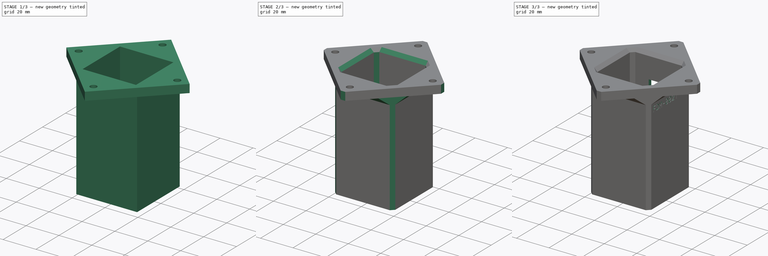
[diagram: build sequence overview — one tinted view per stage of 3, left to right]
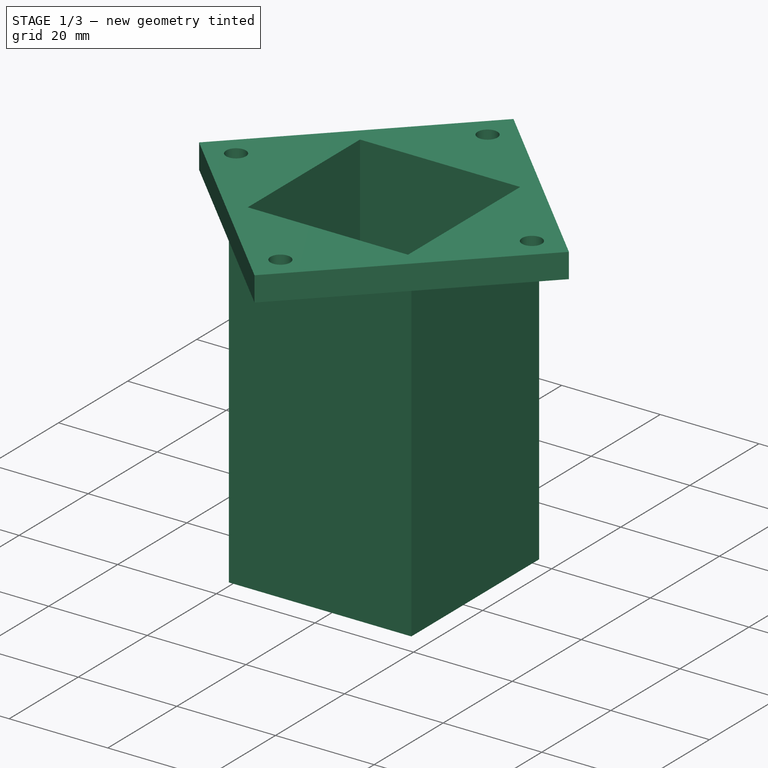
[diagram: stage 1 of 3 — iso view after this stage's code; geometry added in this stage tinted green]
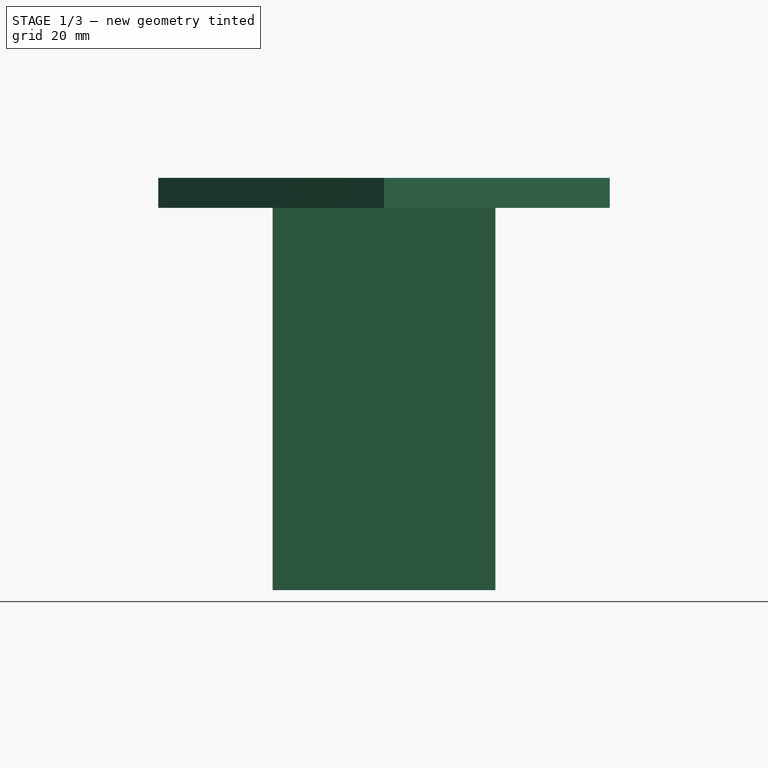
[diagram: stage 1 of 3 — front view after this stage's code; geometry added in this stage tinted green]
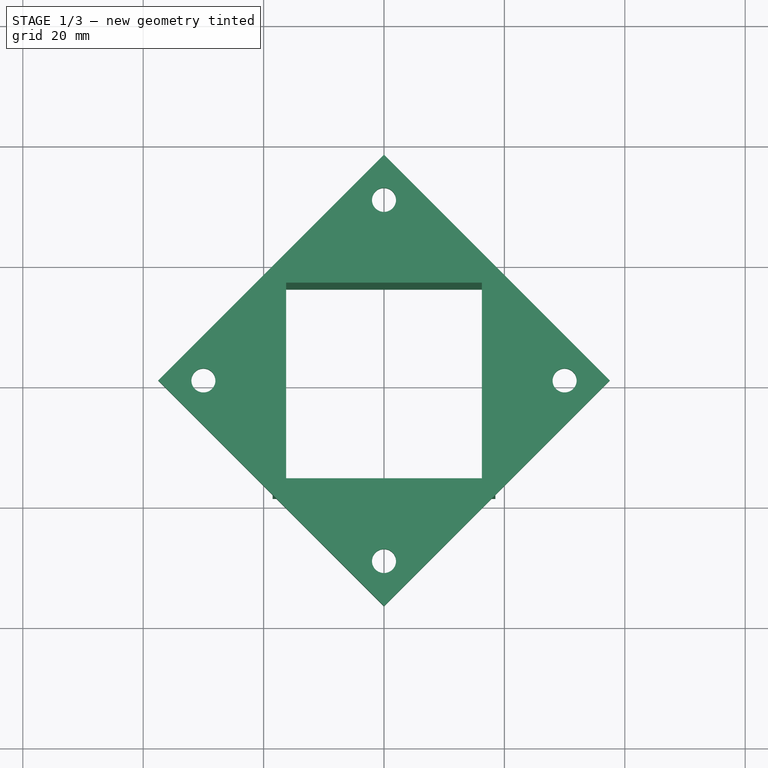
[diagram: stage 1 of 3 — top view after this stage's code; geometry added in this stage tinted green]
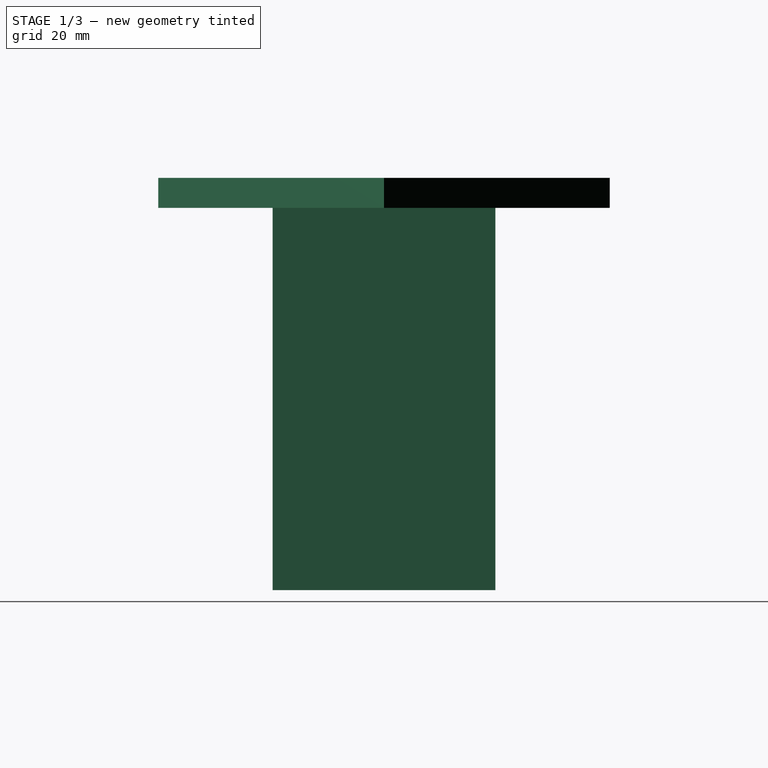
[diagram: stage 1 of 3 — right view after this stage's code; geometry added in this stage tinted green]
FCSTD DOCUMENT  (FreeCAD 0.19R24291 (Git))
Label: FDM-0021_foot
License: All rights reserved
LicenseURL: http://en.wikipedia.org/wiki/All_rights_reserved
objects: Sketcher::SketchObject×5, PartDesign::Pocket×4, PartDesign::Plane×3, PartDesign::Pad×2, PartDesign::Chamfer×2, Part::Part2DObjectPython×1, PartDesign::Body×1
note: 26 computed .brp shape members not serialized (recipe doc carries the construction recipe); baked Part::Feature solids carry a one-line shape summary decoded from their .brp

FEATURE [Sketcher::SketchObject] Sketch
  FullyConstrained = true
  MapMode = 5
  Support = -> [XY_Plane]
  sketch-geometry (8):
    g0: LineSegment StartX=0 StartY=37.5 StartZ=0 EndX=-37.5 EndY=0 EndZ=0
    g1: LineSegment StartX=-37.5 StartY=0 StartZ=0 EndX=0 EndY=-37.5 EndZ=0
    g2: LineSegment StartX=0 StartY=-37.5 StartZ=0 EndX=37.5 EndY=-7.1e-15 EndZ=0
    g3: LineSegment StartX=37.5 StartY=-7.1e-15 StartZ=0 EndX=0 EndY=37.5 EndZ=0
    g4: Circle CenterX=30 CenterY=0 CenterZ=0 NormalX=0 NormalY=0 NormalZ=1 AngleXU=0 Radius=2
    g5: Circle CenterX=0 CenterY=30 CenterZ=0 NormalX=0 NormalY=0 NormalZ=1 AngleXU=0 Radius=2
    g6: Circle CenterX=-30 CenterY=0 CenterZ=0 NormalX=0 NormalY=0 NormalZ=1 AngleXU=0 Radius=2
    g7: Circle CenterX=0 CenterY=-30 CenterZ=0 NormalX=0 NormalY=0 NormalZ=1 AngleXU=0 Radius=2
  constraints (24):
    c: PointOnObject(g0,g-2)
    c: PointOnObject(g0,g-1)
    c: Coincident(g0,g1)
    c: PointOnObject(g1,g-2)
    c: Coincident(g1,g2)
    c: Coincident(g2,g3)
    c: Coincident(g3,g0)
    c: Equal(g0,g3)
    c: Equal(g0,g1)
    c: Equal(g0,g2)
    c: Angle(g-1,g0) = 0.785398
    c: DistanceY(g1,g0) = 75
    c: Diameter(g4) = 4
    c: PointOnObject(g5,g-2)
    c: PointOnObject(g6,g-1)
    c: PointOnObject(g7,g-2)
    c: Diameter(g5) = 4
    c: Diameter(g6) = 4
    c: Diameter(g7) = 4
    c: DistanceY(g-1,g5) = 30
    c: DistanceY(g7,g-1) = 30
    c: DistanceX(g6,g-1) = 30
    c: DistanceX(g-1,g4) = 30
    c: PointOnObject(g4,g-1)
FEATURE [PartDesign::Pad] Pad
  AllowMultiFace = false
  Direction = (1,1,1)
  Length = 5
  Length2 = 100
  Profile = -> Sketch
  Type = 0
FEATURE [Sketcher::SketchObject] Sketch001
  FullyConstrained = true
  MapMode = 5
  Support = -> [XY_Plane]
  sketch-geometry (4):
    g0: LineSegment StartX=-18.5 StartY=18.5 StartZ=0 EndX=18.5 EndY=18.5 EndZ=0
    g1: LineSegment StartX=18.5 StartY=18.5 StartZ=0 EndX=18.5 EndY=-18.5 EndZ=0
    g2: LineSegment StartX=18.5 StartY=-18.5 StartZ=0 EndX=-18.5 EndY=-18.5 EndZ=0
    g3: LineSegment StartX=-18.5 StartY=-18.5 StartZ=0 EndX=-18.5 EndY=18.5 EndZ=0
  constraints (10):
    c: Coincident(g0,g1)
    c: Coincident(g1,g2)
    c: Coincident(g2,g3)
    c: Coincident(g3,g0)
    c: Horizontal(g2)
    c: Vertical(g1)
    c: DistanceX(g2,g2) = 37
    c: DistanceY(g3,g3) = 37
    c: Symmetric(g0,g0,g-2)
    c: Symmetric(g0,g2,g-1)
FEATURE [PartDesign::Pad] Pad001
  AllowMultiFace = false
  BaseFeature = -> Pad
  Direction = (1,1,1)
  Length = 63.5
  Length2 = 100
  Profile = -> Sketch001
  Reversed = true
  Type = 0
FEATURE [Sketcher::SketchObject] Sketch002
  FullyConstrained = true
  MapMode = 5
  Support = -> [XY_Plane]
  sketch-geometry (4):
    g0: LineSegment StartX=-16.25 StartY=16.25 StartZ=0 EndX=16.25 EndY=16.25 EndZ=0
    g1: LineSegment StartX=16.25 StartY=16.25 StartZ=0 EndX=16.25 EndY=-16.25 EndZ=0
    g2: LineSegment StartX=16.25 StartY=-16.25 StartZ=0 EndX=-16.25 EndY=-16.25 EndZ=0
    g3: LineSegment StartX=-16.25 StartY=-16.25 StartZ=0 EndX=-16.25 EndY=16.25 EndZ=0
  constraints (10):
    c: Coincident(g0,g1)
    c: Coincident(g1,g2)
    c: Coincident(g2,g3)
    c: Coincident(g3,g0)
    c: Horizontal(g2)
    c: Vertical(g1)
    c: Symmetric(g0,g0,g-2)
    c: Symmetric(g0,g2,g-1)
    c: Equal(g3,g0)
    c: DistanceX(g0,g0) = 32.5
FEATURE [PartDesign::Pocket] Pocket
  AllowMultiFace = false
  BaseFeature = -> Pad001
  Length = 100
  Length2 = 100
  Profile = -> Sketch002
  Type = 4
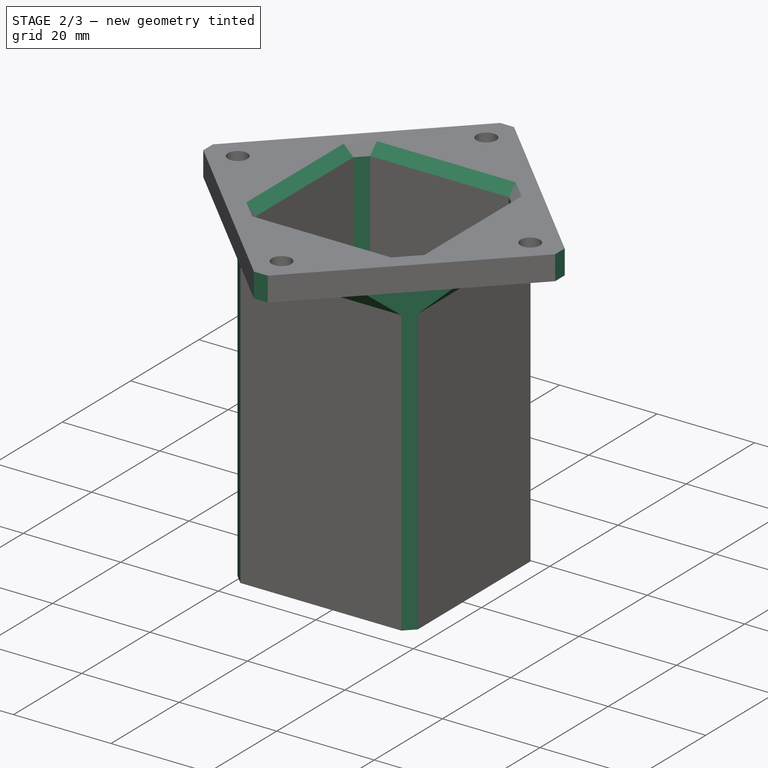
[diagram: stage 2 of 3 — iso view after this stage's code; geometry added in this stage tinted green]
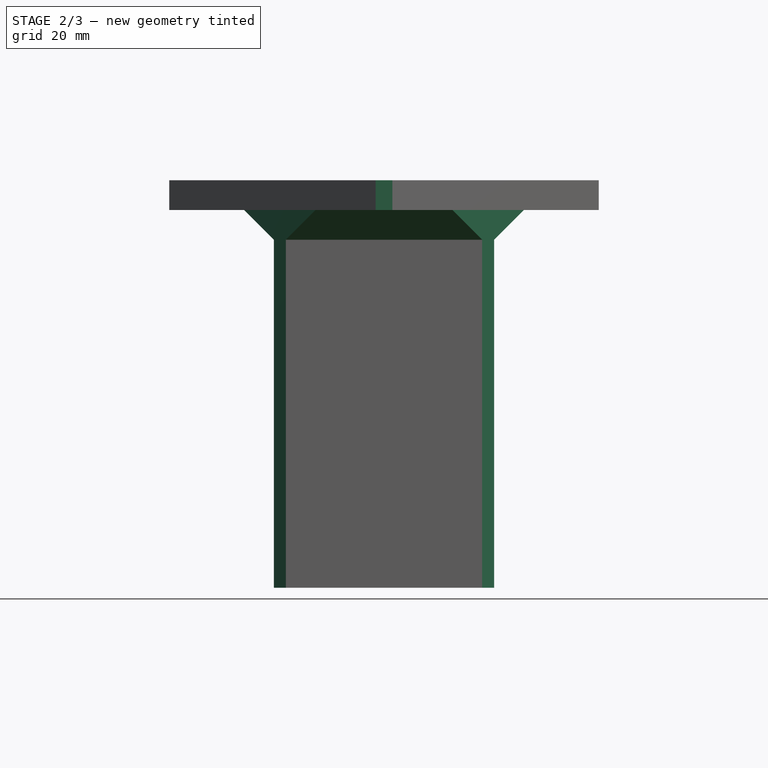
[diagram: stage 2 of 3 — front view after this stage's code; geometry added in this stage tinted green]
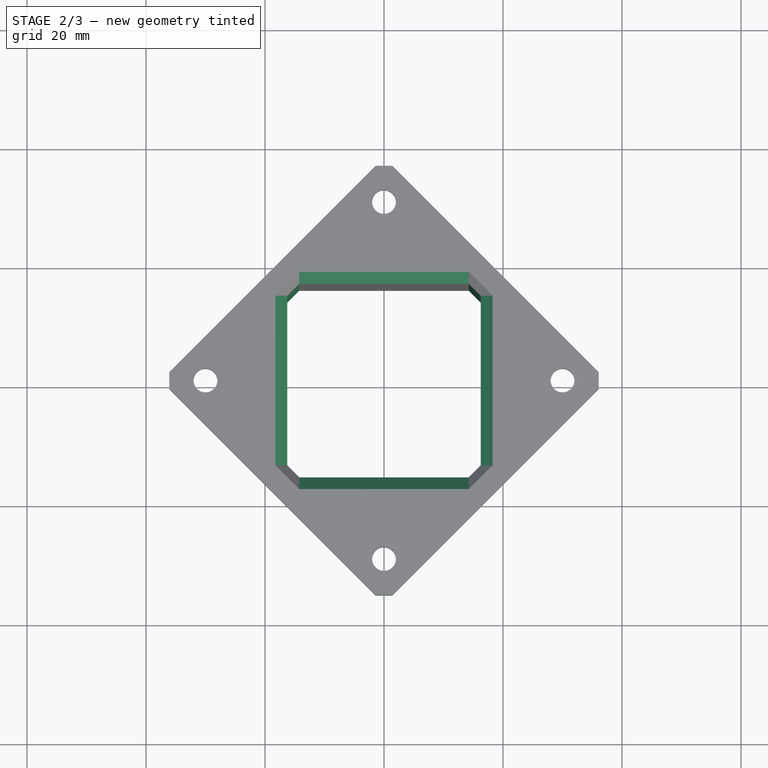
[diagram: stage 2 of 3 — top view after this stage's code; geometry added in this stage tinted green]
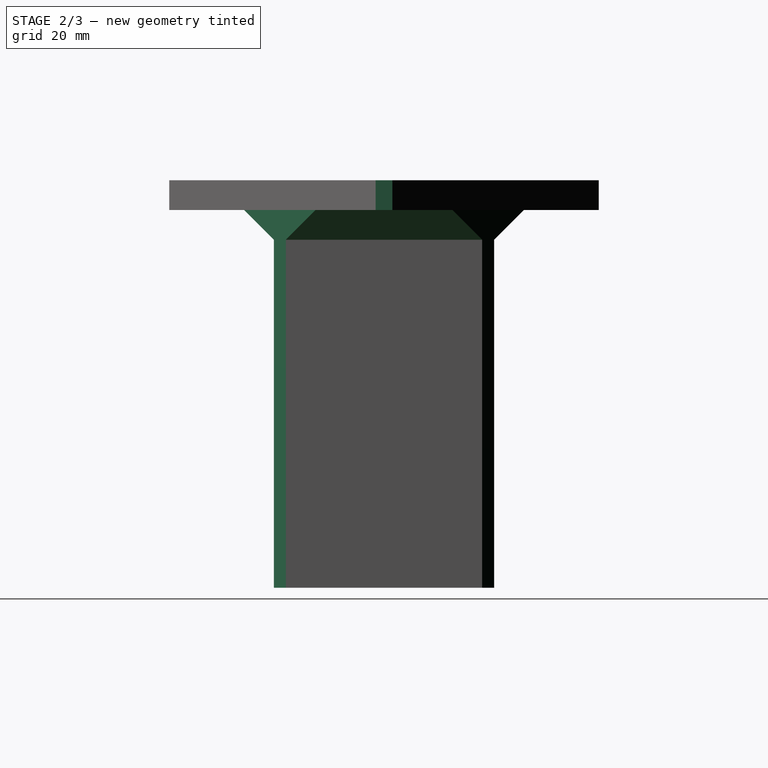
[diagram: stage 2 of 3 — right view after this stage's code; geometry added in this stage tinted green]
FEATURE [PartDesign::Chamfer] Chamfer
  Angle = 45
  Base = -> Pocket [Edge26,Edge23,Edge24,Edge25,Edge1,Edge5,Edge8,Edge2,Edge31,Edge34,Edge32,Edge36,Edge41,Edge47,Edge45,Edge43]
  BaseFeature = -> Pocket
  ChamferType = 0
  FlipDirection = false
  Size = 2
  Size2 = 1
  SupportTransform = false
FEATURE [PartDesign::Chamfer] Chamfer001
  Angle = 45
  Base = -> Chamfer [Edge20,Edge23,Edge19,Edge16]
  BaseFeature = -> Chamfer
  ChamferType = 0
  FlipDirection = false
  Size = 5
  Size2 = 1
  SupportTransform = false
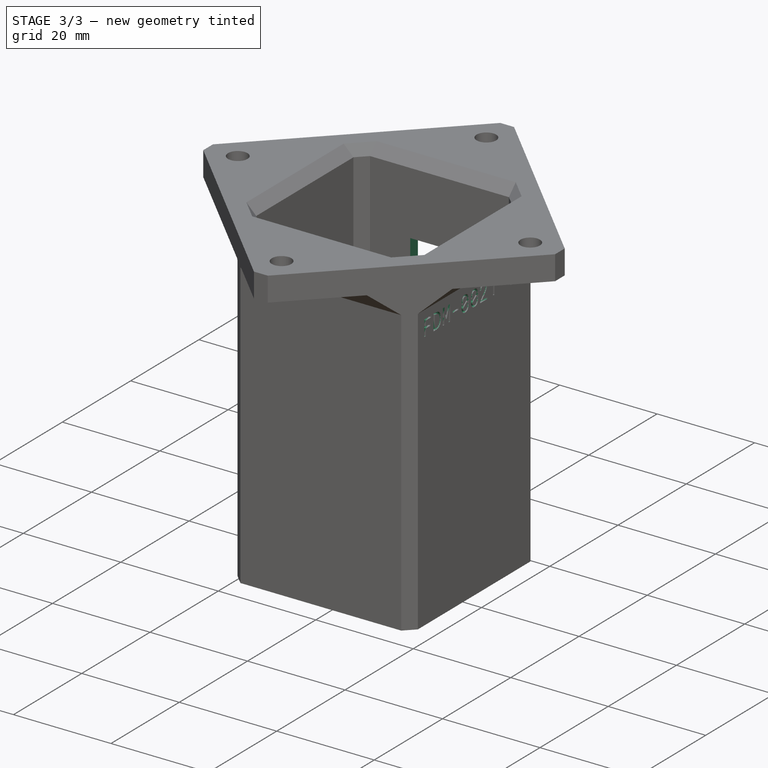
[diagram: stage 3 of 3 — iso view after this stage's code; geometry added in this stage tinted green]
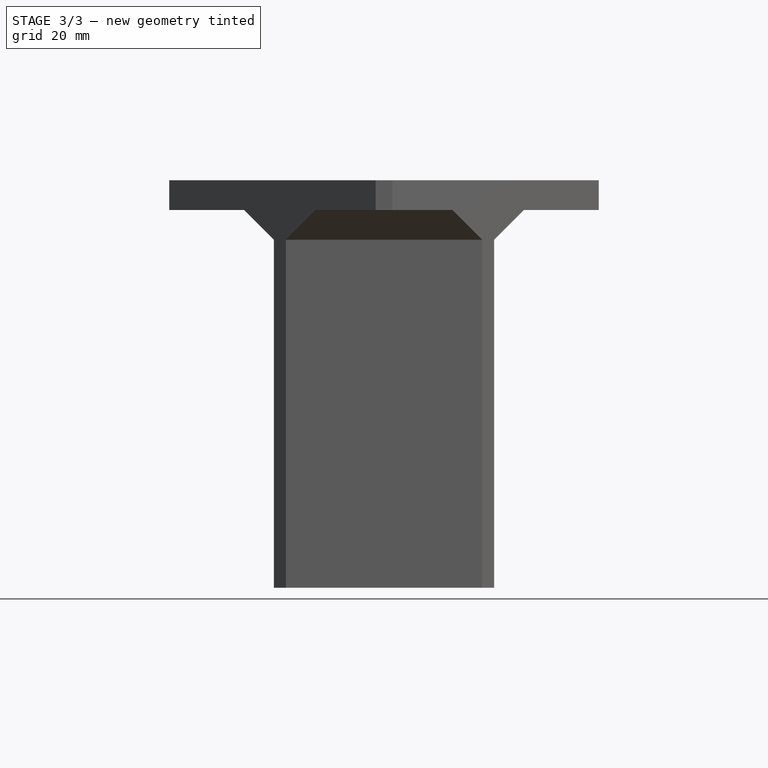
[diagram: stage 3 of 3 — front view after this stage's code; geometry added in this stage tinted green]
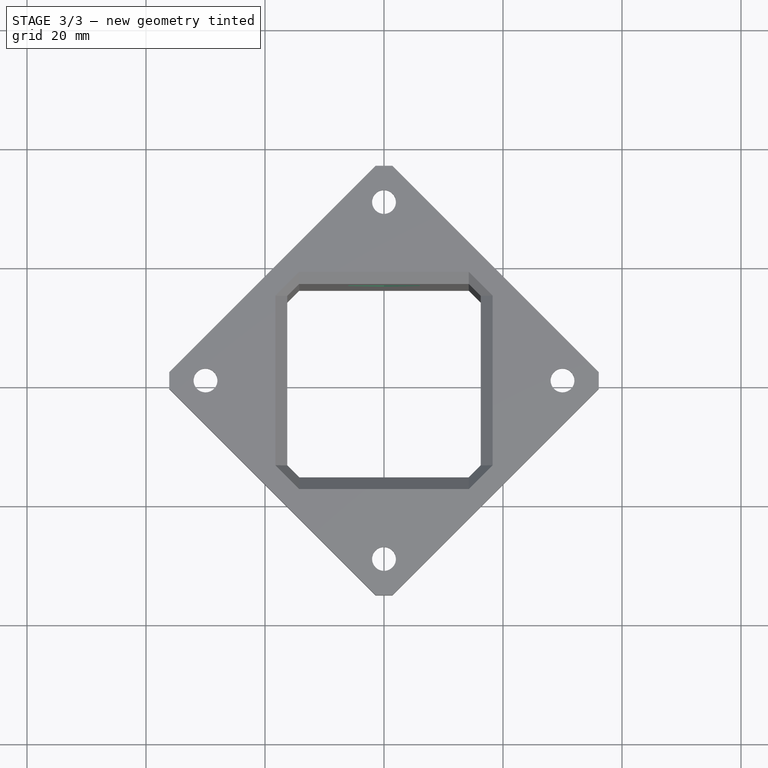
[diagram: stage 3 of 3 — top view after this stage's code; geometry added in this stage tinted green]
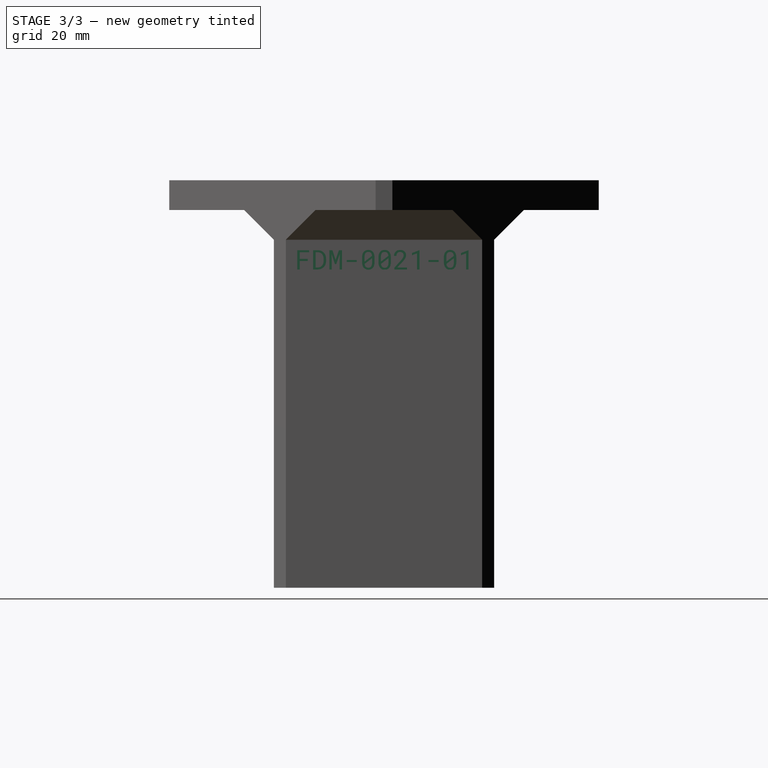
[diagram: stage 3 of 3 — right view after this stage's code; geometry added in this stage tinted green]
FEATURE [Sketcher::SketchObject] Sketch003
  FullyConstrained = true
  MapMode = 5
  Placement = pos=(0,0,0) rot=(1,0,0;1.5708rad)
  Support = -> [XZ_Plane]
  sketch-geometry (5):
    g0: LineSegment StartX=-6 StartY=-10 StartZ=0 EndX=6 EndY=-10 EndZ=0
    g1: LineSegment StartX=6 StartY=-10 StartZ=0 EndX=6 EndY=-16 EndZ=0
    g2: LineSegment StartX=6 StartY=-16 StartZ=0 EndX=0 EndY=-22 EndZ=0
    g3: LineSegment StartX=0 StartY=-22 StartZ=0 EndX=-6 EndY=-16 EndZ=0
    g4: LineSegment StartX=-6 StartY=-16 StartZ=0 EndX=-6 EndY=-10 EndZ=0
  constraints (14):
    c: Coincident(g0,g1)
    c: Vertical(g1)
    c: Coincident(g1,g2)
    c: PointOnObject(g2,g-2)
    c: Coincident(g2,g3)
    c: Coincident(g3,g4)
    c: Coincident(g4,g0)
    c: Vertical(g4)
    c: Symmetric(g0,g0,g-2)
    c: Distance(g-1,g0) = 10
    c: Equal(g4,g1)
    c: DistanceY(g4,g4) = 6
    c: Perpendicular(g2,g3)
    c: DistanceX(g0,g0) = 12
FEATURE [PartDesign::Pocket] Pocket001
  AllowMultiFace = false
  BaseFeature = -> Chamfer001
  Length = 30
  Length2 = 100
  Profile = -> Sketch003
  Type = 0
FEATURE [PartDesign::Plane] DatumPlane
  Length = 60
  MapMode = 5
  Placement = pos=(0,0,0) rot=(1,0,0;3.14159rad)
  ResizeMode = 0
  Support = -> [Pocket001]
  Width = 60
FEATURE [Sketcher::SketchObject] Sketch004
  FullyConstrained = true
  MapMode = 5
  Placement = pos=(0,0,0) rot=(1,0,0;3.14159rad)
  Support = -> [DatumPlane]
  sketch-geometry (28):
    g0: LineSegment StartX=-28.4123 StartY=-2.75 StartZ=0 EndX=-26.8246 EndY=-4e-16 EndZ=0
    g1: LineSegment StartX=-26.8246 StartY=-4e-16 StartZ=0 EndX=-28.4123 EndY=2.75 EndZ=0
    g2: LineSegment StartX=-28.4123 StartY=2.75 StartZ=0 EndX=-31.5877 EndY=2.75 EndZ=0
    g3: LineSegment StartX=-31.5877 StartY=2.75 StartZ=0 EndX=-33.1754 EndY=-4e-16 EndZ=0
    g4: LineSegment StartX=-33.1754 StartY=-4e-16 StartZ=0 EndX=-31.5877 EndY=-2.75 EndZ=0
    g5: LineSegment StartX=-31.5877 StartY=-2.75 StartZ=0 EndX=-28.4123 EndY=-2.75 EndZ=0
    g6: Circle CenterX=-30 CenterY=0 CenterZ=0 NormalX=0 NormalY=0 NormalZ=1 AngleXU=0 Radius=3.17543
    g7: LineSegment StartX=0 StartY=26.8246 StartZ=0 EndX=2.75 EndY=28.4123 EndZ=0
    g8: LineSegment StartX=2.75 StartY=28.4123 StartZ=0 EndX=2.75 EndY=31.5877 EndZ=0
    g9: LineSegment StartX=2.75 StartY=31.5877 StartZ=0 EndX=-4e-16 EndY=33.1754 EndZ=0
    g10: LineSegment StartX=-4e-16 StartY=33.1754 StartZ=0 EndX=-2.75 EndY=31.5877 EndZ=0
    g11: LineSegment StartX=-2.75 StartY=31.5877 StartZ=0 EndX=-2.75 EndY=28.4123 EndZ=0
    g12: LineSegment StartX=-2.75 StartY=28.4123 StartZ=0 EndX=0 EndY=26.8246 EndZ=0
    g13: Circle CenterX=0 CenterY=30 CenterZ=0 NormalX=0 NormalY=0 NormalZ=1 AngleXU=0 Radius=3.17543
    g14: LineSegment StartX=26.8246 StartY=0 StartZ=0 EndX=28.4123 EndY=-2.75 EndZ=0
    g15: LineSegment StartX=28.4123 StartY=-2.75 StartZ=0 EndX=31.5877 EndY=-2.75 EndZ=0
    g16: LineSegment StartX=31.5877 StartY=-2.75 StartZ=0 EndX=33.1754 EndY=-2.66e-14 EndZ=0
    g17: LineSegment StartX=33.1754 StartY=-2.66e-14 StartZ=0 EndX=31.5877 EndY=2.75 EndZ=0
    g18: LineSegment StartX=31.5877 StartY=2.75 StartZ=0 EndX=28.4123 EndY=2.75 EndZ=0
    g19: LineSegment StartX=28.4123 StartY=2.75 StartZ=0 EndX=26.8246 EndY=0 EndZ=0
    g20: Circle CenterX=30 CenterY=0 CenterZ=0 NormalX=0 NormalY=0 NormalZ=1 AngleXU=0 Radius=3.17543
    g21: LineSegment StartX=0 StartY=-26.8246 StartZ=0 EndX=-2.75 EndY=-28.4123 EndZ=0
    g22: LineSegment StartX=-2.75 StartY=-28.4123 StartZ=0 EndX=-2.75 EndY=-31.5877 EndZ=0
    g23: LineSegment StartX=-2.75 StartY=-31.5877 StartZ=0 EndX=-4e-16 EndY=-33.1754 EndZ=0
    g24: LineSegment StartX=-4e-16 StartY=-33.1754 StartZ=0 EndX=2.75 EndY=-31.5877 EndZ=0
    g25: LineSegment StartX=2.75 StartY=-31.5877 StartZ=0 EndX=2.75 EndY=-28.4123 EndZ=0
    g26: LineSegment StartX=2.75 StartY=-28.4123 StartZ=0 EndX=0 EndY=-26.8246 EndZ=0
    g27: Circle CenterX=0 CenterY=-30 CenterZ=0 NormalX=0 NormalY=0 NormalZ=1 AngleXU=0 Radius=3.17543
  constraints (68):
    c: Coincident(g0,g1)
    c: Coincident(g1,g2)
    c: Coincident(g2,g3)
    c: Coincident(g3,g4)
    c: Coincident(g4,g5)
    c: Coincident(g5,g0)
    c: Equal(g0, g1-g5) x5
    c: PointOnObject(g0,g6)
    c: PointOnObject(g1,g6)
    c: PointOnObject(g2,g6)
    c: PointOnObject(g3,g6)
    c: PointOnObject(g4,g6)
    c: PointOnObject(g5,g6)
    c: PointOnObject(g6,g-1)
    c: Coincident(g7,g8)
    c: Coincident(g8,g9)
    c: Coincident(g9,g10)
    c: Coincident(g10,g11)
    c: Coincident(g11,g12)
    c: Coincident(g12,g7)
    c: Equal(g7, g8-g12) x5
    c: PointOnObject(g7,g13)
    c: PointOnObject(g8,g13)
    c: PointOnObject(g9,g13)
    c: PointOnObject(g10,g13)
    c: PointOnObject(g11,g13)
    c: PointOnObject(g12,g13)
    c: PointOnObject(g13,g-2)
    c: PointOnObject(g12,g-2)
    c: Coincident(g14,g15)
    c: Coincident(g15,g16)
    c: Coincident(g16,g17)
    c: Coincident(g17,g18)
    c: Coincident(g18,g19)
    c: Coincident(g19,g14)
    c: Equal(g14, g15-g19) x5
    c: PointOnObject(g14,g20)
    c: PointOnObject(g15,g20)
    c: PointOnObject(g16,g20)
    c: PointOnObject(g17,g20)
    c: PointOnObject(g18,g20)
    c: PointOnObject(g19,g20)
    c: PointOnObject(g20,g-1)
    c: PointOnObject(g19,g-1)
    c: Coincident(g21,g22)
    c: Coincident(g22,g23)
    c: Coincident(g23,g24)
    c: Coincident(g24,g25)
    c: Coincident(g25,g26)
    c: Coincident(g26,g21)
    c: Equal(g21, g22-g26) x5
    c: PointOnObject(g21,g27)
    c: PointOnObject(g22,g27)
    c: PointOnObject(g23,g27)
    c: PointOnObject(g24,g27)
    c: PointOnObject(g25,g27)
    c: PointOnObject(g26,g27)
    c: PointOnObject(g27,g-2)
    c: PointOnObject(g26,g-2)
    c: DistanceY(g0,g1) = 5.5
    c: Horizontal(g2)
    c: DistanceY(g14,g18) = 5.5
    c: DistanceX(g22,g24) = 5.5
    c: DistanceX(g11,g7) = 5.5
    c: DistanceX(g-1,g20) = 30
    c: DistanceX(g6,g-1) = 30
    c: DistanceY(g-1,g13) = 30
    c: DistanceY(g27,g-1) = 30
FEATURE [PartDesign::Pocket] Pocket002
  AllowMultiFace = false
  BaseFeature = -> Pocket001
  Length = 2.5
  Length2 = 100
  Profile = -> Sketch004
  Type = 0
FEATURE [PartDesign::Plane] DatumPlane001
  Length = 60
  MapMode = 5
  Placement = pos=(18.5,0,0) rot=(0.57735,0.57735,0.57735;2.0944rad)
  ResizeMode = 0
  Support = -> [Pocket002]
  Width = 60
FEATURE [PartDesign::Plane] DatumPlane002  label="PrintPlane"
  AttachmentOffset = pos=(0,0,0) rot=(0,0,1;0.785398rad)
  Length = 84.8528
  MapMode = 5
  Placement = pos=(0,0,5) rot=(0,0,1;0.785398rad)
  ResizeMode = 0
  Support = -> [Pocket002]
  Width = 84.8528
FEATURE [Part::Part2DObjectPython] ShapeString  label="PN"  # Draft 2D object (typed FeaturePython)
  AttachmentOffset = pos=(-15,-10,0) rot=(0,0,1;0rad)
  FontFile = ../../lib/fonts/RobotoMono-VariableFont_weight.ttf
  MapMode = 5
  Placement = pos=(18.5,-15,-10) rot=(0.57735,0.57735,0.57735;2.0944rad)
  Size = 4
  String = FDM-0021-01
  Support = -> [DatumPlane001]
  Tracking = 0
  Visibility1 = false
FEATURE [PartDesign::Pocket] Pocket003
  AllowMultiFace = false
  BaseFeature = -> Pocket002
  Length = 0.5
  Length2 = 100
  Profile = -> ShapeString
  Type = 0
FEATURE [PartDesign::Body] Body
  Group = -> [Sketch,Pad,Sketch001,Pad001,Sketch002,Pocket,Chamfer,Chamfer001,Sketch003,Pocket001,DatumPlane,Sketch004,Pocket002,DatumPlane001,DatumPlane002,ShapeString,Pocket003]
  Origin = -> Origin
  Tip = -> Pocket003
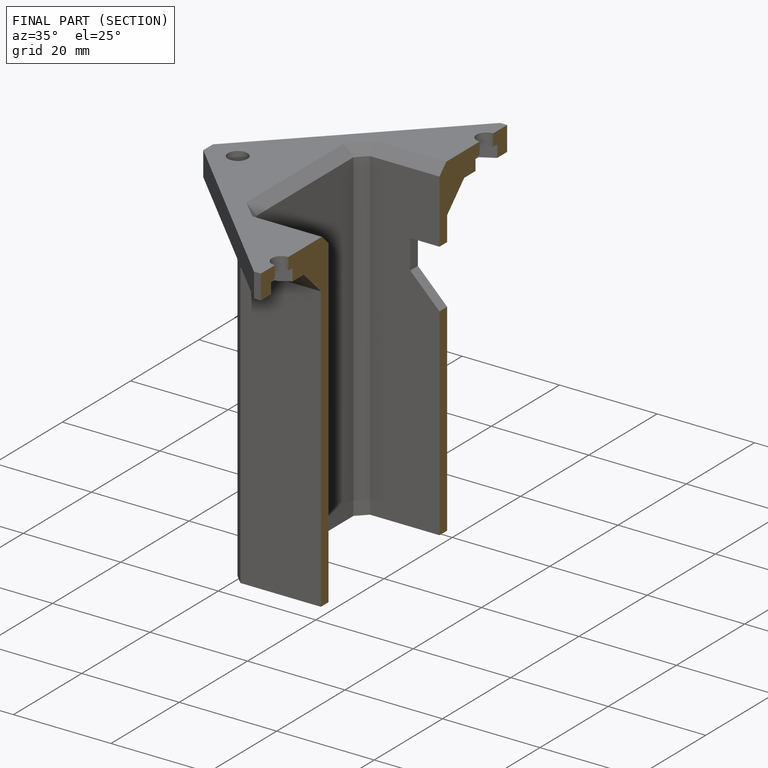
[diagram: finished part — half-section view (interior)]
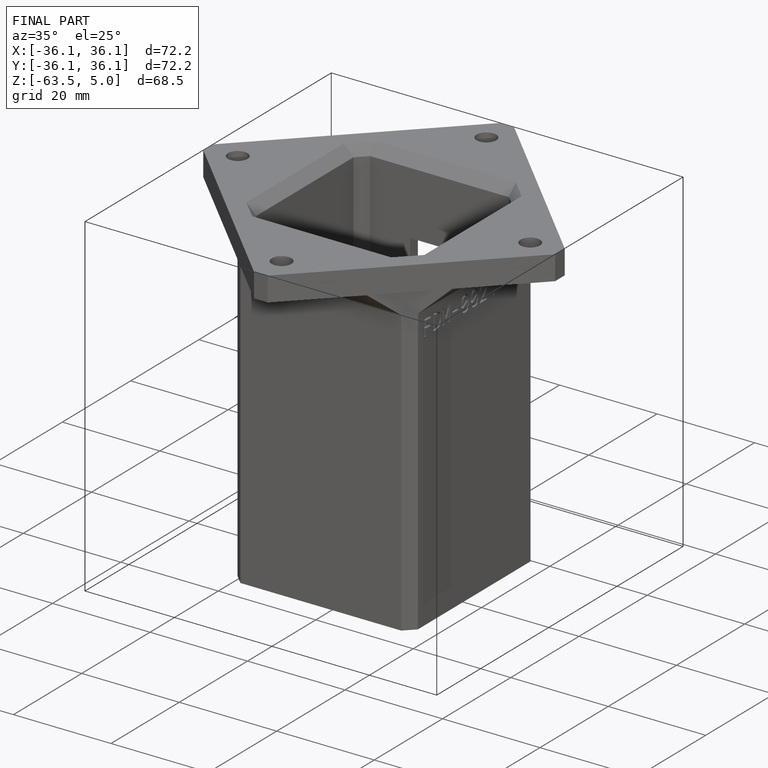
[diagram: finished part — iso view with bounding-box wireframe]
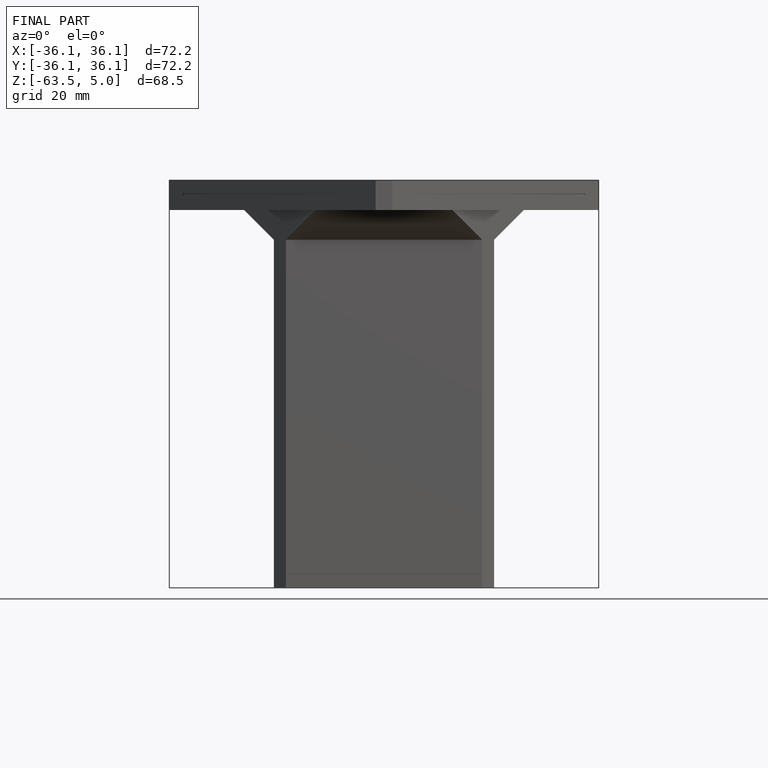
[diagram: finished part — front view with bounding-box wireframe]
